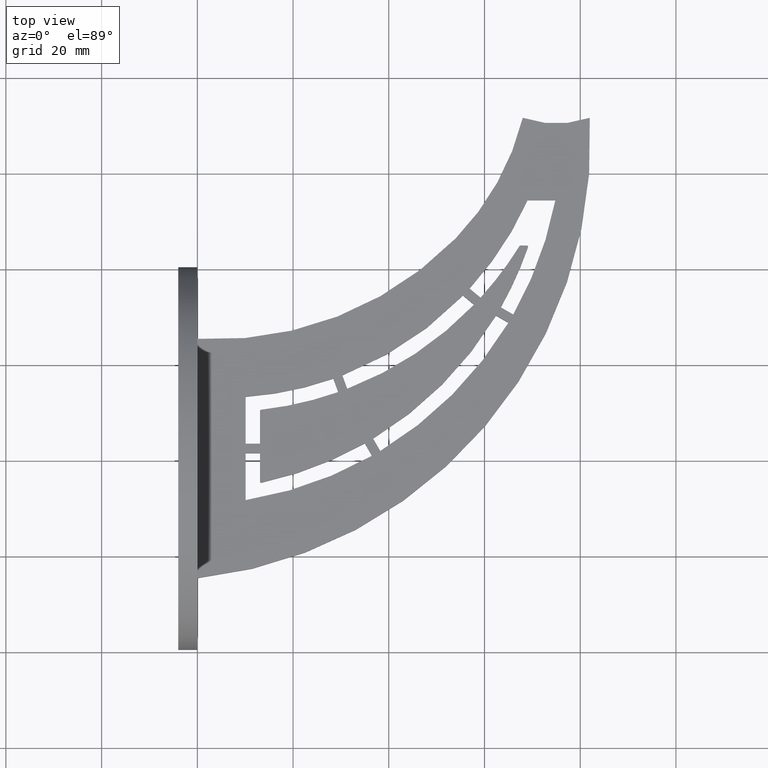
[diagram: clean part render]
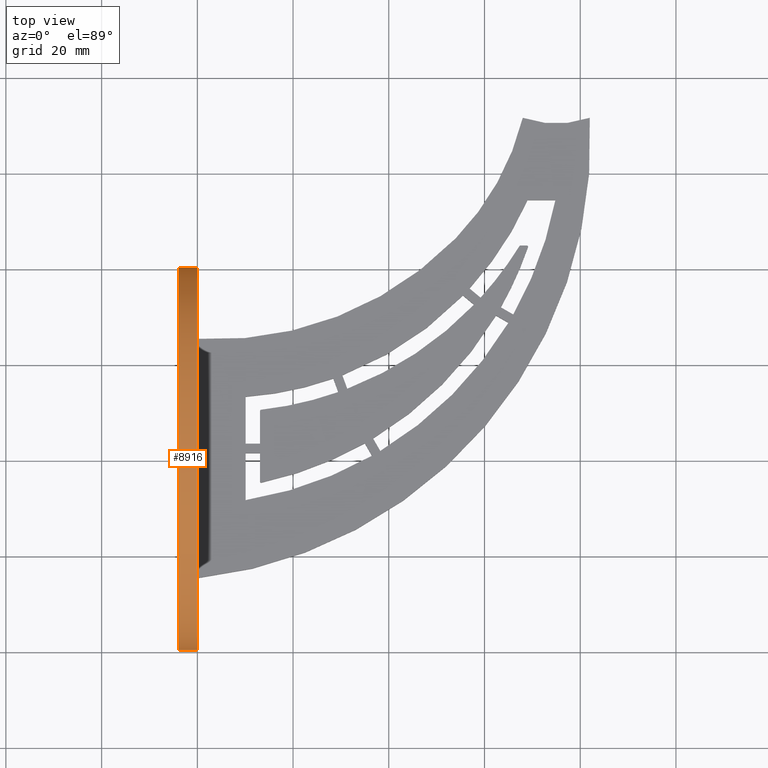
[diagram: same view with one face highlighted and labeled with its STEP entity id]
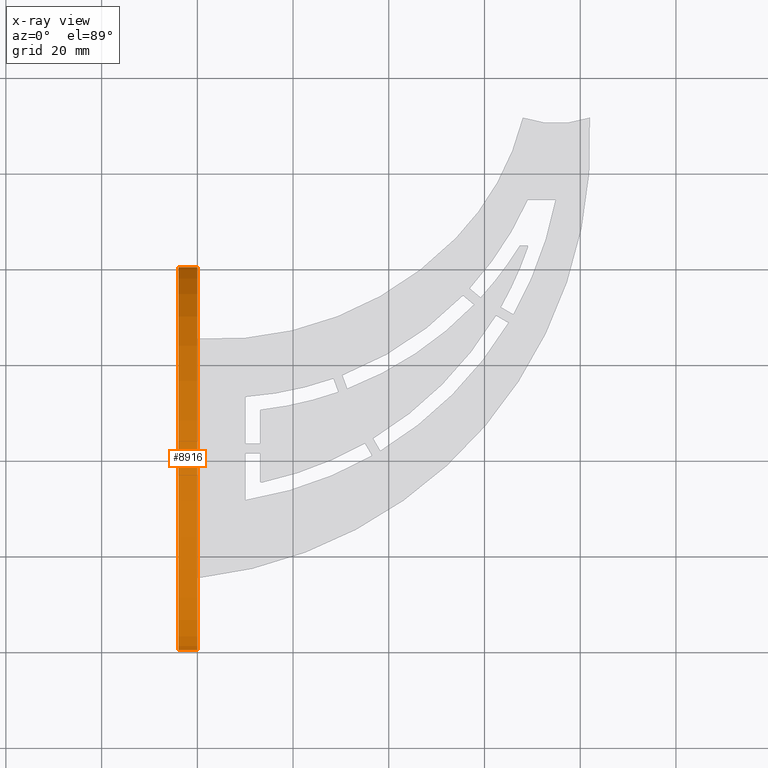
[diagram: x-ray of the same camera — body ghosted, the highlighted face saturated]
A machine part, top view. The second image highlights one B-rep face of the part: STEP entity #8916.
The next image is the same camera in x-ray: the body ghosted, the highlighted face saturated — about 0% of this face is hidden behind the body in this view.
In plain terms, the highlighted face is a freeform B-spline surface patch.
Its self-contained STEP definition (entity closure, byte-faithful):
#23 = CARTESIAN_POINT ( 'NONE',  ( 3.197442310920455683E-12, 40.00000000000005684, 0.000000000000000000 ) ) ;
#42 = EDGE_CURVE ( 'NONE', #2008, #13118, #7296, .T. ) ;
#893 = CARTESIAN_POINT ( 'NONE',  ( 3.197442310920456087E-12, 40.00000000000005684, 60.00000000000000711 ) ) ;
#1677 = CARTESIAN_POINT ( 'NONE',  ( 3.197312206659752172E-12, 40.00000000000005684, 59.99999999999999289 ) ) ;
#1880 = CARTESIAN_POINT ( 'NONE',  ( -3.999999999996803002, 40.00000000000037659, 0.000000000000000000 ) ) ;
#2008 = VERTEX_POINT ( 'NONE', #6818 ) ;
#2586 = EDGE_CURVE ( 'NONE', #13118, #11326, #6760, .T. ) ;
#3061 = CARTESIAN_POINT ( 'NONE',  ( -4.000000000003197442, -39.99999999999974420, 59.99999999999998579 ) ) ;
#3247 = CARTESIAN_POINT ( 'NONE',  ( -3.197312206659752172E-12, -40.00000000000005684, 59.99999999999998579 ) ) ;
#3950 = CARTESIAN_POINT ( 'NONE',  ( -3.197442310920455683E-12, -40.00000000000005684, -3.673940397442059178E-15 ) ) ;
#4023 = ORIENTED_EDGE ( 'NONE', *, *, #9700, .T. ) ;
#4070 = CARTESIAN_POINT ( 'NONE',  ( -4.000000000003197442, -39.99999999999973710, -3.673940397442059178E-15 ) ) ;
#4981 = CARTESIAN_POINT ( 'NONE',  ( -3.999999999996803446, 40.00000000000037659, 60.00000000000000711 ) ) ;
#4994 = CARTESIAN_POINT ( 'NONE',  ( 3.197095366225255475E-12, 40.00000000000005684, 0.000000000000000000 ) ) ;
#5097 = DIRECTION ( 'NONE',  ( 1.000000000000000000, -7.993605777301128353E-14, -0.000000000000000000 ) ) ;
#5620 = EDGE_CURVE ( 'NONE', #6928, #11326, #9271, .T. ) ;
#5841 = FACE_OUTER_BOUND ( 'NONE', #10766, .T. ) ;
#5941 = CARTESIAN_POINT ( 'NONE',  ( -3.197442310920455683E-12, -40.00000000000005684, -3.673940397442059178E-15 ) ) ;
#6063 = CARTESIAN_POINT ( 'NONE',  ( 3.197442310920455683E-12, 40.00000000000005684, 0.000000000000000000 ) ) ;
#6178 = ORIENTED_EDGE ( 'NONE', *, *, #2586, .F. ) ;
#6233 = CARTESIAN_POINT ( 'NONE',  ( -3.999999999996803002, 40.00000000000037659, 0.000000000000000000 ) ) ;
#6477 = LINE ( 'NONE', #7099, #12813 ) ;
#6760 = LINE ( 'NONE', #6233, #9466 ) ;
#6818 = CARTESIAN_POINT ( 'NONE',  ( -4.000000000003197442, -39.99999999999973710, -3.673940397442059178E-15 ) ) ;
#6907 =( BOUNDED_SURFACE ( )  B_SPLINE_SURFACE ( 3, 1, ( 
 ( #9827, #12144 ),
 ( #3061, #3247 ),
 ( #10778, #1677 ),
 ( #11088, #4994 ) ),
 .UNSPECIFIED., .F., .F., .F. ) 
 B_SPLINE_SURFACE_WITH_KNOTS ( ( 4, 4 ),
 ( 2, 2 ),
 ( 0.000000000000000000, 1.000000000000000000 ),
 ( 0.000000000000000000, 1.000000000000000000 ),
 .UNSPECIFIED. ) 
 GEOMETRIC_REPRESENTATION_ITEM ( )  RATIONAL_B_SPLINE_SURFACE ( (
 ( 1.000000000000000000, 1.000000000000000000),
 ( 0.3333333333333333703, 0.3333333333333333703),
 ( 0.3333333333333333703, 0.3333333333333333703),
 ( 1.000000000000000000, 1.000000000000000000) ) ) 
 REPRESENTATION_ITEM ( '' )  SURFACE ( )  );
#6928 = VERTEX_POINT ( 'NONE', #5941 ) ;
#7080 = CARTESIAN_POINT ( 'NONE',  ( -4.000000000003197442, -39.99999999999974420, 59.99999999999998579 ) ) ;
#7099 = CARTESIAN_POINT ( 'NONE',  ( -4.000000000003197442, -39.99999999999973710, -3.673940397442059178E-15 ) ) ;
#7296 =( BOUNDED_CURVE ( )  B_SPLINE_CURVE ( 3, ( #4070, #7080, #4981, #1880 ),
 .UNSPECIFIED., .F., .F. ) 
 B_SPLINE_CURVE_WITH_KNOTS ( ( 4, 4 ),
 ( 3.141592653589793116, 6.283185307179586232 ),
 .UNSPECIFIED. ) 
 CURVE ( )  GEOMETRIC_REPRESENTATION_ITEM ( )  RATIONAL_B_SPLINE_CURVE ( ( 1.000000000000000000, 0.3333333333333333703, 0.3333333333333333703, 1.000000000000000000 ) ) 
 REPRESENTATION_ITEM ( '' )  );
#8916 = ADVANCED_FACE ( 'NONE', ( #5841 ), #6907, .F. ) ;
#9191 = CARTESIAN_POINT ( 'NONE',  ( -3.197442310920456491E-12, -40.00000000000006395, 59.99999999999998579 ) ) ;
#9271 =( BOUNDED_CURVE ( )  B_SPLINE_CURVE ( 3, ( #3950, #9191, #893, #6063 ),
 .UNSPECIFIED., .F., .F. ) 
 B_SPLINE_CURVE_WITH_KNOTS ( ( 4, 4 ),
 ( 3.141592653589793116, 6.283185307179586232 ),
 .UNSPECIFIED. ) 
 CURVE ( )  GEOMETRIC_REPRESENTATION_ITEM ( )  RATIONAL_B_SPLINE_CURVE ( ( 1.000000000000000000, 0.3333333333333333703, 0.3333333333333333703, 1.000000000000000000 ) ) 
 REPRESENTATION_ITEM ( '' )  );
#9466 = VECTOR ( 'NONE', #13388, 1000.000000000000000 ) ;
#9700 = EDGE_CURVE ( 'NONE', #2008, #6928, #6477, .T. ) ;
#9827 = CARTESIAN_POINT ( 'NONE',  ( -4.000000000003197442, -39.99999999999973710, -3.673940397442059178E-15 ) ) ;
#10663 = CARTESIAN_POINT ( 'NONE',  ( -3.999999999996803002, 40.00000000000037659, 0.000000000000000000 ) ) ;
#10766 = EDGE_LOOP ( 'NONE', ( #11459, #4023, #12797, #6178 ) ) ;
#10778 = CARTESIAN_POINT ( 'NONE',  ( -3.999999999996802558, 40.00000000000037659, 59.99999999999999289 ) ) ;
#11088 = CARTESIAN_POINT ( 'NONE',  ( -3.999999999996803002, 40.00000000000037659, 0.000000000000000000 ) ) ;
#11326 = VERTEX_POINT ( 'NONE', #23 ) ;
#11459 = ORIENTED_EDGE ( 'NONE', *, *, #42, .F. ) ;
#12144 = CARTESIAN_POINT ( 'NONE',  ( -3.197095366225255475E-12, -40.00000000000005684, -3.673940397442059178E-15 ) ) ;
#12797 = ORIENTED_EDGE ( 'NONE', *, *, #5620, .T. ) ;
#12813 = VECTOR ( 'NONE', #5097, 1000.000000000000000 ) ;
#13118 = VERTEX_POINT ( 'NONE', #10663 ) ;
#13388 = DIRECTION ( 'NONE',  ( 1.000000000000000000, -7.993605777301128353E-14, -0.000000000000000000 ) ) ;